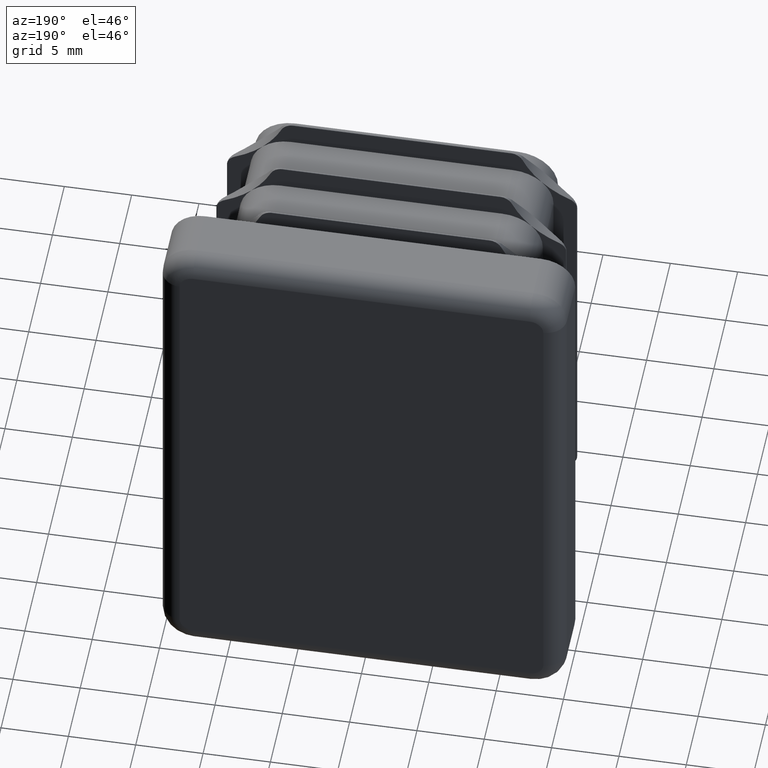
[diagram: clean part render]
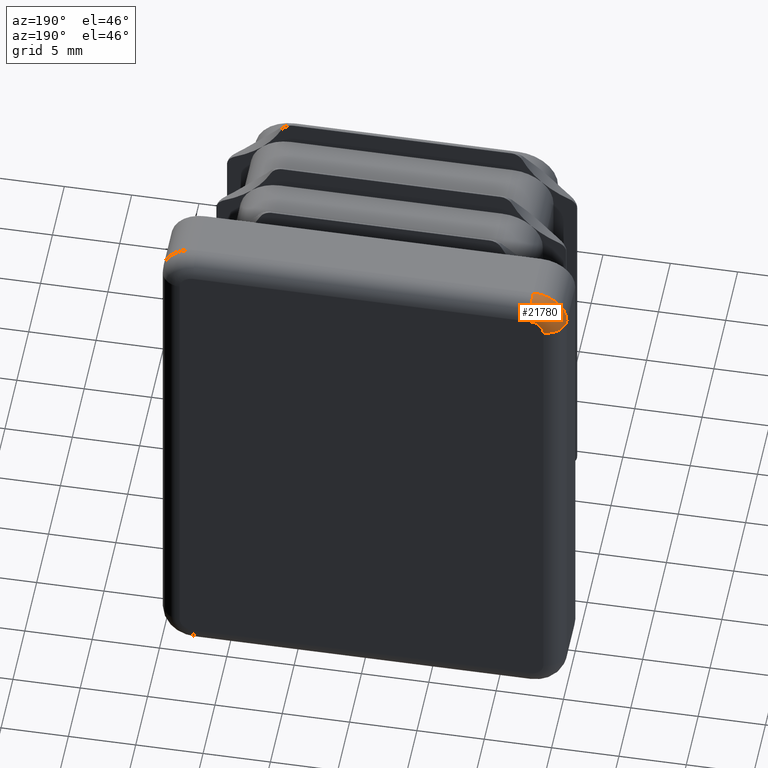
[diagram: same view with one face highlighted and labeled with its STEP entity id]
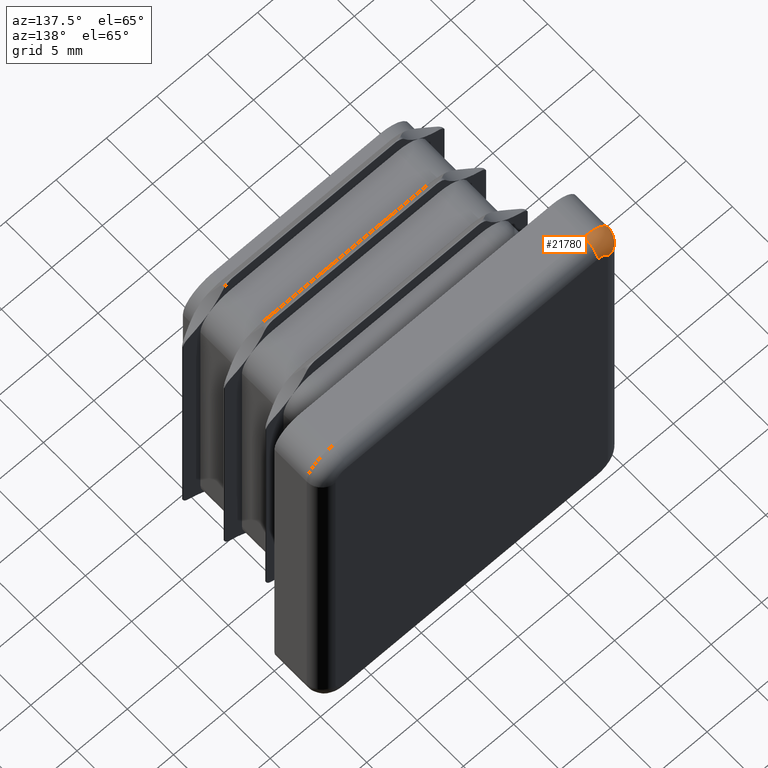
[diagram: same view with one face highlighted and labeled with its STEP entity id]
A machine part, auxiliary view. The second image highlights one B-rep face of the part: STEP entity #21780.
A second angle (auxiliary view) of the same face is appended — the face is thin or edge-on in the first view.
In plain terms, the highlighted toroidal blend (fillet) surface has major radius 1 mm and minor (blend) radius 1.5 mm.
Its self-contained STEP definition (entity closure, byte-faithful):
#1 = DIRECTION ( 'NONE',  ( 0.000000000000000000, 1.000000000000000000, 0.000000000000000000 ) ) ;
#155 = DIRECTION ( 'NONE',  ( 0.000000000000000000, 0.000000000000000000, 1.000000000000000000 ) ) ;
#620 = DIRECTION ( 'NONE',  ( 2.312964634635743056E-15, -0.000000000000000000, 1.000000000000000000 ) ) ;
#2196 = CIRCLE ( 'NONE', #18944, 1.000000000000000888 ) ;
#2416 = CARTESIAN_POINT ( 'NONE',  ( -12.49999999999999822, 3.500000000000000000, 19.99999999999999645 ) ) ;
#2962 = CARTESIAN_POINT ( 'NONE',  ( -15.00000000000000000, 3.500000000000000000, 17.50000000000000000 ) ) ;
#4167 = DIRECTION ( 'NONE',  ( 1.000000000000000000, 0.000000000000000000, 0.000000000000000000 ) ) ;
#4598 = CIRCLE ( 'NONE', #12966, 1.499999999999999556 ) ;
#4646 = CARTESIAN_POINT ( 'NONE',  ( -12.49999999999999822, 3.500000000000000000, 17.49999999999999645 ) ) ;
#5925 = VERTEX_POINT ( 'NONE', #2962 ) ;
#6187 = EDGE_LOOP ( 'NONE', ( #20306, #10635, #16985, #8293 ) ) ;
#6536 = AXIS2_PLACEMENT_3D ( 'NONE', #19845, #4167, #9368 ) ;
#6590 = CARTESIAN_POINT ( 'NONE',  ( -13.50000000000000000, 5.000000000000000000, 17.49999999999999645 ) ) ;
#8097 = DIRECTION ( 'NONE',  ( -0.000000000000000000, -1.000000000000000000, -0.000000000000000000 ) ) ;
#8251 = TOROIDAL_SURFACE ( 'NONE', #11097, 1.000000000000000000, 1.500000000000000000 ) ;
#8293 = ORIENTED_EDGE ( 'NONE', *, *, #21895, .F. ) ;
#9211 = CIRCLE ( 'NONE', #6536, 1.500000000000001332 ) ;
#9368 = DIRECTION ( 'NONE',  ( 0.000000000000000000, 0.000000000000000000, -1.000000000000000000 ) ) ;
#9493 = CARTESIAN_POINT ( 'NONE',  ( -13.50000000000000000, 3.500000000000000000, 17.49999999999999645 ) ) ;
#9649 = VERTEX_POINT ( 'NONE', #10183 ) ;
#9901 = EDGE_CURVE ( 'NONE', #21619, #5925, #4598, .T. ) ;
#10183 = CARTESIAN_POINT ( 'NONE',  ( -12.49999999999999822, 5.000000000000000000, 18.50000000000000000 ) ) ;
#10418 = FACE_OUTER_BOUND ( 'NONE', #6187, .T. ) ;
#10635 = ORIENTED_EDGE ( 'NONE', *, *, #15341, .F. ) ;
#11097 = AXIS2_PLACEMENT_3D ( 'NONE', #18923, #22394, #155 ) ;
#11192 = EDGE_CURVE ( 'NONE', #9649, #16704, #9211, .T. ) ;
#11920 = CIRCLE ( 'NONE', #19902, 2.499999999999998668 ) ;
#12845 = DIRECTION ( 'NONE',  ( 1.000000000000000000, 0.000000000000000000, -2.312964634635743450E-15 ) ) ;
#12966 = AXIS2_PLACEMENT_3D ( 'NONE', #9493, #620, #12845 ) ;
#14283 = DIRECTION ( 'NONE',  ( 0.000000000000000000, 0.000000000000000000, 1.000000000000000000 ) ) ;
#14790 = DIRECTION ( 'NONE',  ( 0.000000000000000000, 0.000000000000000000, 1.000000000000000000 ) ) ;
#15341 = EDGE_CURVE ( 'NONE', #16704, #5925, #11920, .T. ) ;
#16704 = VERTEX_POINT ( 'NONE', #2416 ) ;
#16985 = ORIENTED_EDGE ( 'NONE', *, *, #11192, .F. ) ;
#18923 = CARTESIAN_POINT ( 'NONE',  ( -12.49999999999999822, 3.500000000000000000, 17.49999999999999645 ) ) ;
#18944 = AXIS2_PLACEMENT_3D ( 'NONE', #19423, #1, #14283 ) ;
#19423 = CARTESIAN_POINT ( 'NONE',  ( -12.49999999999999822, 5.000000000000000000, 17.49999999999999645 ) ) ;
#19845 = CARTESIAN_POINT ( 'NONE',  ( -12.49999999999999822, 3.500000000000000000, 18.50000000000000000 ) ) ;
#19902 = AXIS2_PLACEMENT_3D ( 'NONE', #4646, #8097, #14790 ) ;
#20306 = ORIENTED_EDGE ( 'NONE', *, *, #9901, .T. ) ;
#21619 = VERTEX_POINT ( 'NONE', #6590 ) ;
#21780 = ADVANCED_FACE ( 'NONE', ( #10418 ), #8251, .T. ) ;
#21895 = EDGE_CURVE ( 'NONE', #21619, #9649, #2196, .T. ) ;
#22394 = DIRECTION ( 'NONE',  ( 0.000000000000000000, 1.000000000000000000, 0.000000000000000000 ) ) ;